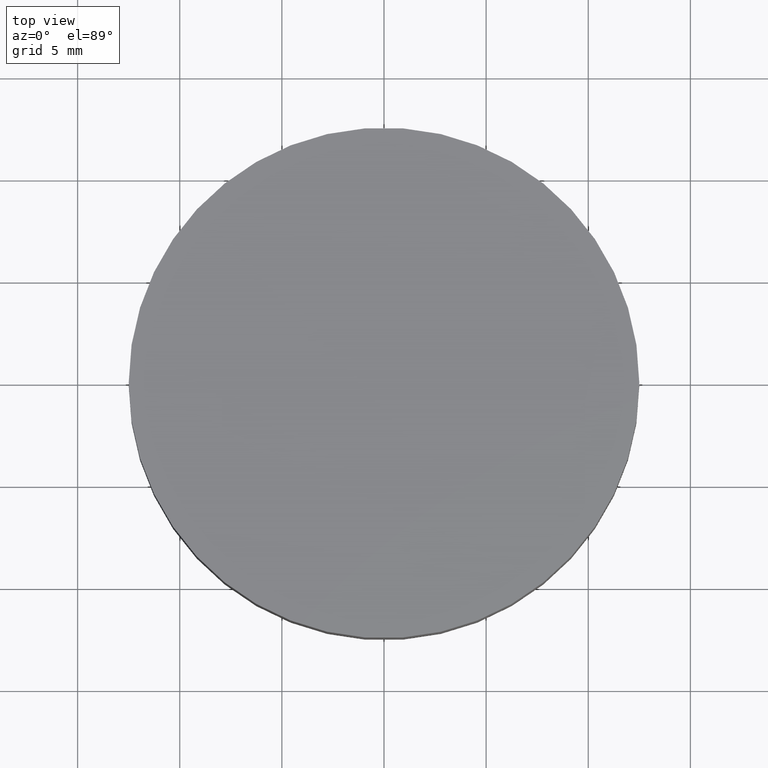
[diagram: clean part render]
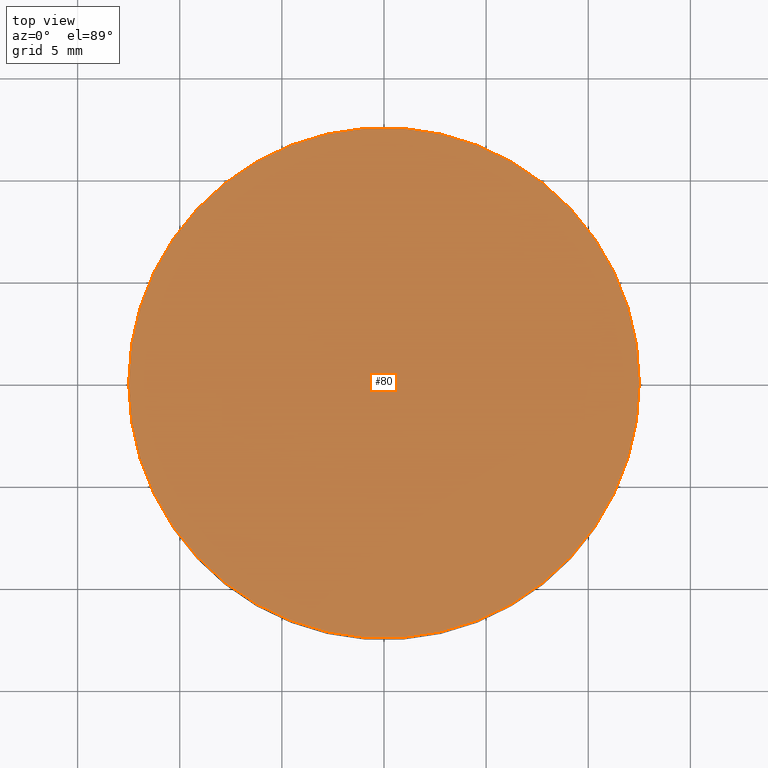
[diagram: same view with one face highlighted and labeled with its STEP entity id]
A machine part, top view. The second image highlights one B-rep face of the part: STEP entity #80.
In plain terms, the highlighted planar face has unit normal (0, 0, 1).
Its self-contained STEP definition (entity closure, byte-faithful):
#3 = ORIENTED_EDGE ( 'NONE', *, *, #28, .T. ) ;
#5 = CIRCLE ( 'NONE', #21, 12.50000000000000000 ) ;
#9 = CARTESIAN_POINT ( 'NONE',  ( 0.0000000000000000000, 0.0000000000000000000, 6.000000000000000000 ) ) ;
#21 = AXIS2_PLACEMENT_3D ( 'NONE', #9, #51, #43 ) ;
#25 = DIRECTION ( 'NONE',  ( 0.0000000000000000000, 0.0000000000000000000, 1.000000000000000000 ) ) ;
#26 = PLANE ( 'NONE',  #41 ) ;
#28 = EDGE_CURVE ( 'NONE', #69, #119, #5, .T. ) ;
#34 = DIRECTION ( 'NONE',  ( 0.0000000000000000000, 0.0000000000000000000, 1.000000000000000000 ) ) ;
#36 = CARTESIAN_POINT ( 'NONE',  ( 12.50000000000000000, 1.530808498934191500E-015, 6.000000000000000000 ) ) ;
#41 = AXIS2_PLACEMENT_3D ( 'NONE', #73, #25, #104 ) ;
#43 = DIRECTION ( 'NONE',  ( 1.000000000000000000, 0.0000000000000000000, 0.0000000000000000000 ) ) ;
#51 = DIRECTION ( 'NONE',  ( 0.0000000000000000000, 0.0000000000000000000, 1.000000000000000000 ) ) ;
#58 = CIRCLE ( 'NONE', #72, 12.50000000000000000 ) ;
#60 = ORIENTED_EDGE ( 'NONE', *, *, #113, .T. ) ;
#69 = VERTEX_POINT ( 'NONE', #36 ) ;
#72 = AXIS2_PLACEMENT_3D ( 'NONE', #103, #34, #83 ) ;
#73 = CARTESIAN_POINT ( 'NONE',  ( 0.0000000000000000000, 0.0000000000000000000, 6.000000000000000000 ) ) ;
#74 = CARTESIAN_POINT ( 'NONE',  ( -12.50000000000000000, 0.0000000000000000000, 6.000000000000000000 ) ) ;
#80 = ADVANCED_FACE ( 'NONE', ( #133 ), #26, .T. ) ;
#83 = DIRECTION ( 'NONE',  ( 1.000000000000000000, 0.0000000000000000000, 0.0000000000000000000 ) ) ;
#103 = CARTESIAN_POINT ( 'NONE',  ( 0.0000000000000000000, 0.0000000000000000000, 6.000000000000000000 ) ) ;
#104 = DIRECTION ( 'NONE',  ( 1.000000000000000000, 0.0000000000000000000, -0.0000000000000000000 ) ) ;
#106 = EDGE_LOOP ( 'NONE', ( #60, #3 ) ) ;
#113 = EDGE_CURVE ( 'NONE', #119, #69, #58, .T. ) ;
#119 = VERTEX_POINT ( 'NONE', #74 ) ;
#133 = FACE_OUTER_BOUND ( 'NONE', #106, .T. ) ;